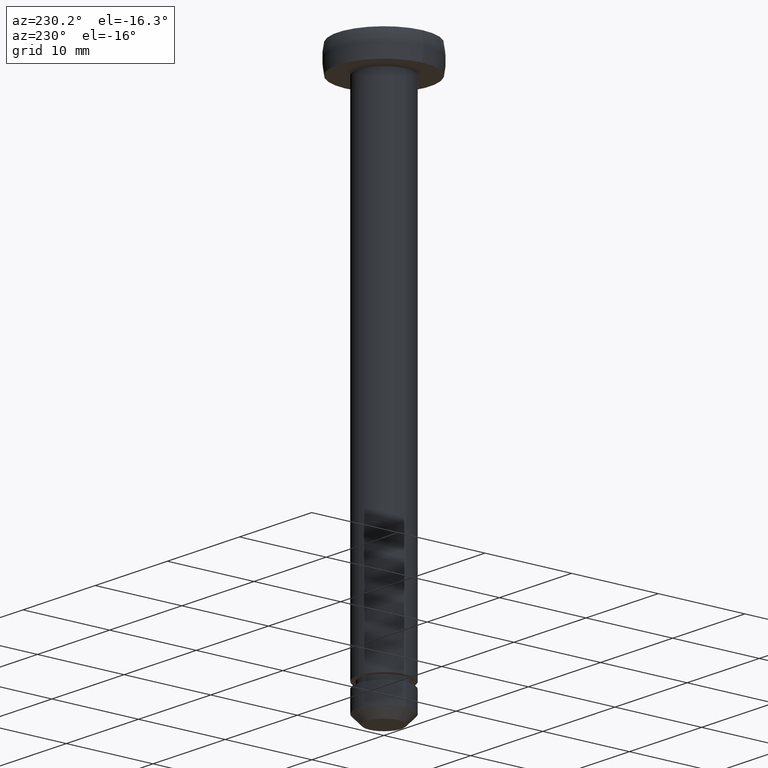
[diagram: clean part render]
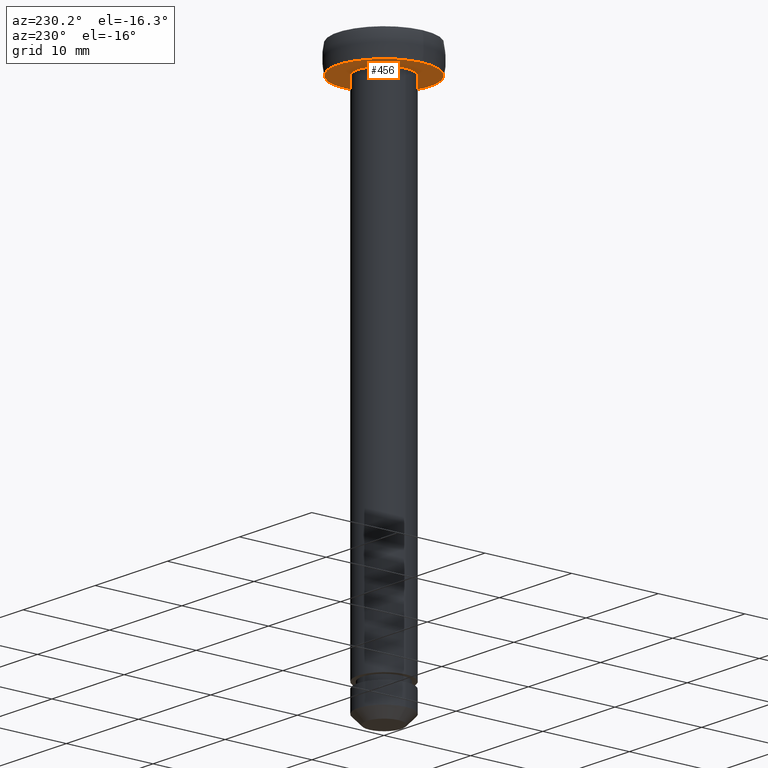
[diagram: same view with one face highlighted and labeled with its STEP entity id]
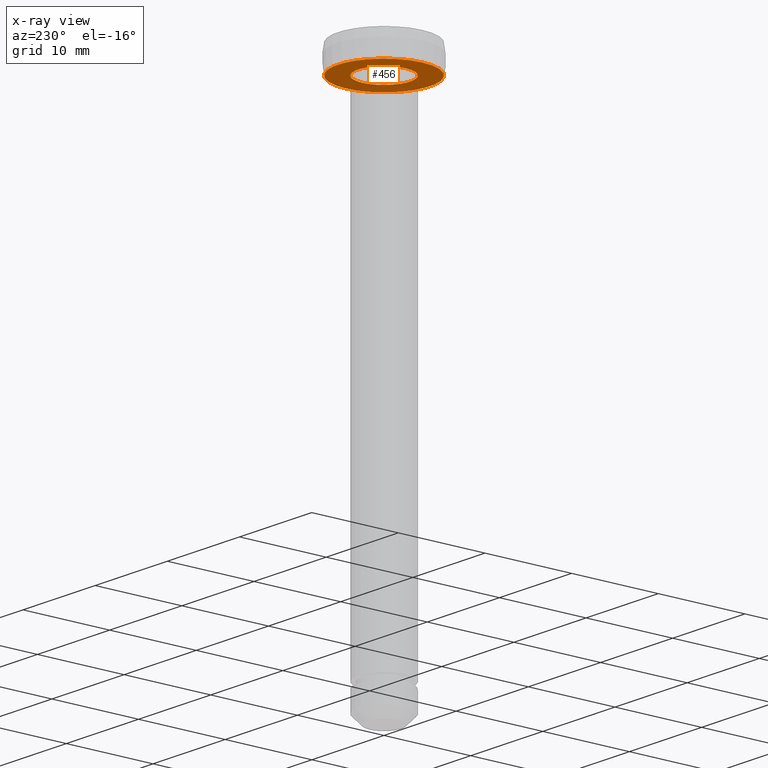
[diagram: x-ray of the same camera — body ghosted, the highlighted face saturated]
A machine part, auxiliary view. The second image highlights one B-rep face of the part: STEP entity #456.
The next image is the same camera in x-ray: the body ghosted, the highlighted face saturated — about 12% of this face is hidden behind the body in this view.
In plain terms, the highlighted planar face has unit normal (0, 0, -1).
Its self-contained STEP definition (entity closure, byte-faithful):
#3 = AXIS2_PLACEMENT_3D ( 'NONE', #32, #13, #445 ) ;
#13 = DIRECTION ( 'NONE',  ( 0.0000000000000000000, 0.0000000000000000000, -1.000000000000000000 ) ) ;
#19 = FACE_OUTER_BOUND ( 'NONE', #199, .T. ) ;
#32 = CARTESIAN_POINT ( 'NONE',  ( 0.0000000000000000000, 0.0000000000000000000, -3.000000018043550200 ) ) ;
#42 = ORIENTED_EDGE ( 'NONE', *, *, #287, .T. ) ;
#53 = DIRECTION ( 'NONE',  ( 0.0000000000000000000, 0.0000000000000000000, -1.000000000000000000 ) ) ;
#64 = AXIS2_PLACEMENT_3D ( 'NONE', #250, #296, #244 ) ;
#77 = AXIS2_PLACEMENT_3D ( 'NONE', #410, #270, #238 ) ;
#87 = VERTEX_POINT ( 'NONE', #326 ) ;
#93 = EDGE_CURVE ( 'NONE', #145, #457, #184, .T. ) ;
#125 = AXIS2_PLACEMENT_3D ( 'NONE', #375, #268, #341 ) ;
#131 = CIRCLE ( 'NONE', #77, 5.328427118366800400 ) ;
#145 = VERTEX_POINT ( 'NONE', #402 ) ;
#155 = ORIENTED_EDGE ( 'NONE', *, *, #359, .F. ) ;
#172 = VERTEX_POINT ( 'NONE', #329 ) ;
#184 = CIRCLE ( 'NONE', #125, 3.000000000000000000 ) ;
#193 = AXIS2_PLACEMENT_3D ( 'NONE', #408, #53, #315 ) ;
#199 = EDGE_LOOP ( 'NONE', ( #42, #224 ) ) ;
#224 = ORIENTED_EDGE ( 'NONE', *, *, #264, .T. ) ;
#230 = CARTESIAN_POINT ( 'NONE',  ( -3.000000000000000000, 0.0000000000000000000, -3.000000018043495100 ) ) ;
#238 = DIRECTION ( 'NONE',  ( -1.000000000000000000, 0.0000000000000000000, 0.0000000000000000000 ) ) ;
#244 = DIRECTION ( 'NONE',  ( -1.000000000000000000, 0.0000000000000000000, -0.0000000000000000000 ) ) ;
#248 = ORIENTED_EDGE ( 'NONE', *, *, #93, .F. ) ;
#250 = CARTESIAN_POINT ( 'NONE',  ( 3.000000000000000000, 0.0000000000000000000, -3.000000018043522700 ) ) ;
#262 = CIRCLE ( 'NONE', #3, 5.328427118366800400 ) ;
#264 = EDGE_CURVE ( 'NONE', #87, #172, #262, .T. ) ;
#268 = DIRECTION ( 'NONE',  ( 0.0000000000000000000, 0.0000000000000000000, -1.000000000000000000 ) ) ;
#270 = DIRECTION ( 'NONE',  ( 0.0000000000000000000, 0.0000000000000000000, -1.000000000000000000 ) ) ;
#279 = PLANE ( 'NONE',  #64 ) ;
#287 = EDGE_CURVE ( 'NONE', #172, #87, #131, .T. ) ;
#296 = DIRECTION ( 'NONE',  ( 0.0000000000000000000, 0.0000000000000000000, -1.000000000000000000 ) ) ;
#315 = DIRECTION ( 'NONE',  ( -1.000000000000000000, 0.0000000000000000000, 0.0000000000000000000 ) ) ;
#316 = FACE_BOUND ( 'NONE', #337, .T. ) ;
#326 = CARTESIAN_POINT ( 'NONE',  ( 5.328427118366800400, 6.525441214997859000E-016, -3.000000018043550200 ) ) ;
#329 = CARTESIAN_POINT ( 'NONE',  ( -5.328427118366800400, 0.0000000000000000000, -3.000000018043550200 ) ) ;
#337 = EDGE_LOOP ( 'NONE', ( #155, #248 ) ) ;
#341 = DIRECTION ( 'NONE',  ( -1.000000000000000000, 0.0000000000000000000, 0.0000000000000000000 ) ) ;
#359 = EDGE_CURVE ( 'NONE', #457, #145, #453, .T. ) ;
#375 = CARTESIAN_POINT ( 'NONE',  ( 0.0000000000000000000, 0.0000000000000000000, -3.000000018043495100 ) ) ;
#402 = CARTESIAN_POINT ( 'NONE',  ( 3.000000000000000000, 3.673940397442059900E-016, -3.000000018043495100 ) ) ;
#408 = CARTESIAN_POINT ( 'NONE',  ( 0.0000000000000000000, 0.0000000000000000000, -3.000000018043495100 ) ) ;
#410 = CARTESIAN_POINT ( 'NONE',  ( 0.0000000000000000000, 0.0000000000000000000, -3.000000018043550200 ) ) ;
#445 = DIRECTION ( 'NONE',  ( -1.000000000000000000, 0.0000000000000000000, 0.0000000000000000000 ) ) ;
#453 = CIRCLE ( 'NONE', #193, 3.000000000000000000 ) ;
#456 = ADVANCED_FACE ( 'NONE', ( #19, #316 ), #279, .T. ) ;
#457 = VERTEX_POINT ( 'NONE', #230 ) ;